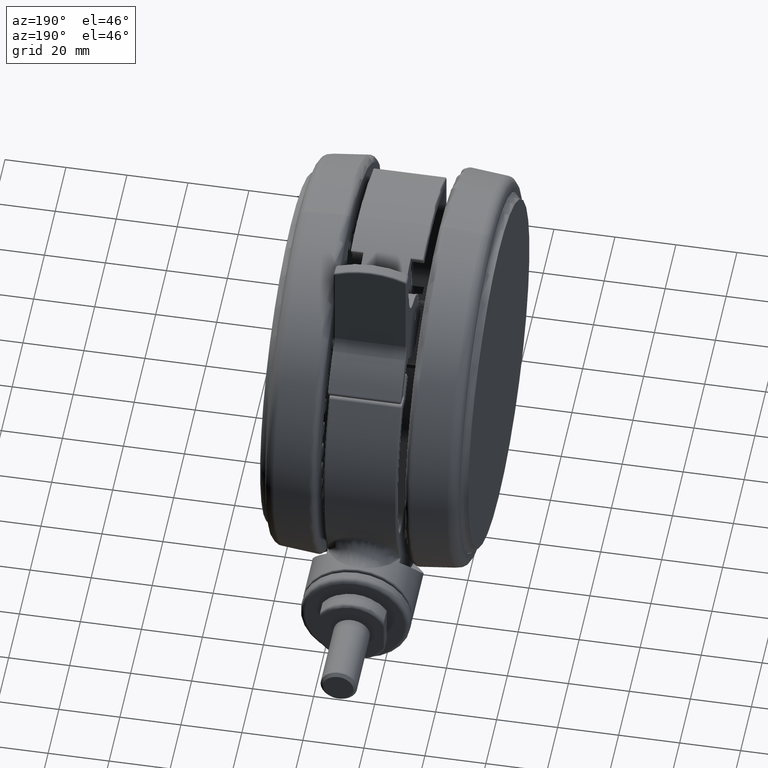
[diagram: clean part render]
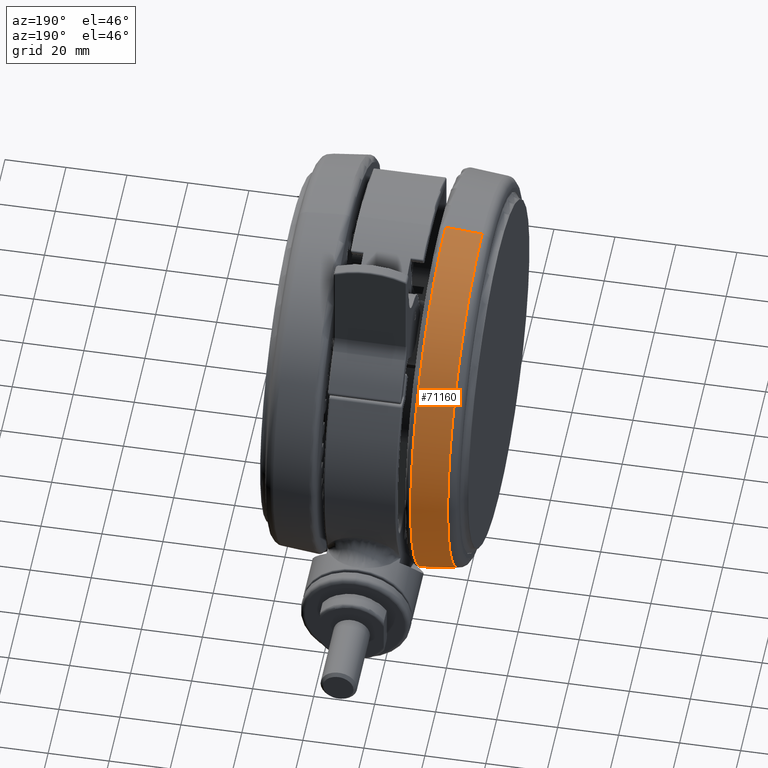
[diagram: same view with one face highlighted and labeled with its STEP entity id]
A machine part, auxiliary view. The second image highlights one B-rep face of the part: STEP entity #71160.
In plain terms, the highlighted conical surface has half-angle 4.961 deg.
Its self-contained STEP definition (entity closure, byte-faithful):
#188 = AXIS2_PLACEMENT_3D ( 'NONE', #31433, #75315, #37763 ) ;
#1864 = ORIENTED_EDGE ( 'NONE', *, *, #25900, .F. ) ;
#2600 = VERTEX_POINT ( 'NONE', #9241 ) ;
#6514 = CARTESIAN_POINT ( 'NONE',  ( -63.95688609912409100, 2.081668171172168500E-014, -62.70269676532072400 ) ) ;
#8392 = CIRCLE ( 'NONE', #188, 63.95688609912406300 ) ;
#9241 = CARTESIAN_POINT ( 'NONE',  ( -64.99250634235663400, 2.877596819779479800E-014, -50.77296958018334300 ) ) ;
#14040 = DIRECTION ( 'NONE',  ( -0.08648479009161678900, 1.059133213606292300E-017, 0.9962531711782949300 ) ) ;
#14695 = CIRCLE ( 'NONE', #75958, 64.99250634235660600 ) ;
#16484 = EDGE_CURVE ( 'NONE', #2600, #75379, #14695, .T. ) ;
#16689 = DIRECTION ( 'NONE',  ( 0.0000000000000000000, 0.0000000000000000000, -1.000000000000000000 ) ) ;
#16978 = EDGE_LOOP ( 'NONE', ( #30410, #65762, #29148, #1864 ) ) ;
#20521 = VERTEX_POINT ( 'NONE', #6514 ) ;
#21014 = LINE ( 'NONE', #57953, #69082 ) ;
#25900 = EDGE_CURVE ( 'NONE', #48727, #75379, #64756, .T. ) ;
#29148 = ORIENTED_EDGE ( 'NONE', *, *, #16484, .T. ) ;
#29818 = AXIS2_PLACEMENT_3D ( 'NONE', #41384, #53418, #72856 ) ;
#30410 = ORIENTED_EDGE ( 'NONE', *, *, #77550, .F. ) ;
#31410 = VECTOR ( 'NONE', #40779, 1000.000000000000000 ) ;
#31433 = CARTESIAN_POINT ( 'NONE',  ( -2.775557561562891400E-014, 2.081668171172168500E-014, -62.70269676532072400 ) ) ;
#34966 = CARTESIAN_POINT ( 'NONE',  ( 64.99250634235657700, 2.081668171172168500E-014, -50.77296958018334300 ) ) ;
#37763 = DIRECTION ( 'NONE',  ( -1.000000000000000000, 0.0000000000000000000, 0.0000000000000000000 ) ) ;
#40499 = CARTESIAN_POINT ( 'NONE',  ( 63.95688609912403400, 2.081668171172168500E-014, -62.70269676532072400 ) ) ;
#40779 = DIRECTION ( 'NONE',  ( 0.08648479009161678900, 0.0000000000000000000, 0.9962531711782949300 ) ) ;
#41384 = CARTESIAN_POINT ( 'NONE',  ( -2.775557561562891400E-014, 2.081668171172168500E-014, -62.70269676532072400 ) ) ;
#48727 = VERTEX_POINT ( 'NONE', #78350 ) ;
#53418 = DIRECTION ( 'NONE',  ( 0.0000000000000000000, -0.0000000000000000000, 1.000000000000000000 ) ) ;
#54305 = CARTESIAN_POINT ( 'NONE',  ( -2.775557561562891400E-014, 2.081668171172168500E-014, -50.77296958018334300 ) ) ;
#57953 = CARTESIAN_POINT ( 'NONE',  ( -63.95688609912409100, 2.864914129619410200E-014, -62.70269676532072400 ) ) ;
#60504 = EDGE_CURVE ( 'NONE', #20521, #2600, #21014, .T. ) ;
#60595 = DIRECTION ( 'NONE',  ( -1.000000000000000000, 0.0000000000000000000, 0.0000000000000000000 ) ) ;
#61496 = CONICAL_SURFACE ( 'NONE', #29818, 63.95688609912406300, 0.08659296680489261800 ) ;
#64756 = LINE ( 'NONE', #40499, #31410 ) ;
#65424 = FACE_OUTER_BOUND ( 'NONE', #16978, .T. ) ;
#65762 = ORIENTED_EDGE ( 'NONE', *, *, #60504, .T. ) ;
#69082 = VECTOR ( 'NONE', #14040, 1000.000000000000000 ) ;
#71160 = ADVANCED_FACE ( 'NONE', ( #65424 ), #61496, .T. ) ;
#72856 = DIRECTION ( 'NONE',  ( 1.000000000000000000, 0.0000000000000000000, 0.0000000000000000000 ) ) ;
#75315 = DIRECTION ( 'NONE',  ( 0.0000000000000000000, 0.0000000000000000000, -1.000000000000000000 ) ) ;
#75379 = VERTEX_POINT ( 'NONE', #34966 ) ;
#75958 = AXIS2_PLACEMENT_3D ( 'NONE', #54305, #16689, #60595 ) ;
#77550 = EDGE_CURVE ( 'NONE', #20521, #48727, #8392, .T. ) ;
#78350 = CARTESIAN_POINT ( 'NONE',  ( 63.95688609912403400, 2.864914129619410200E-014, -62.70269676532072400 ) ) ;